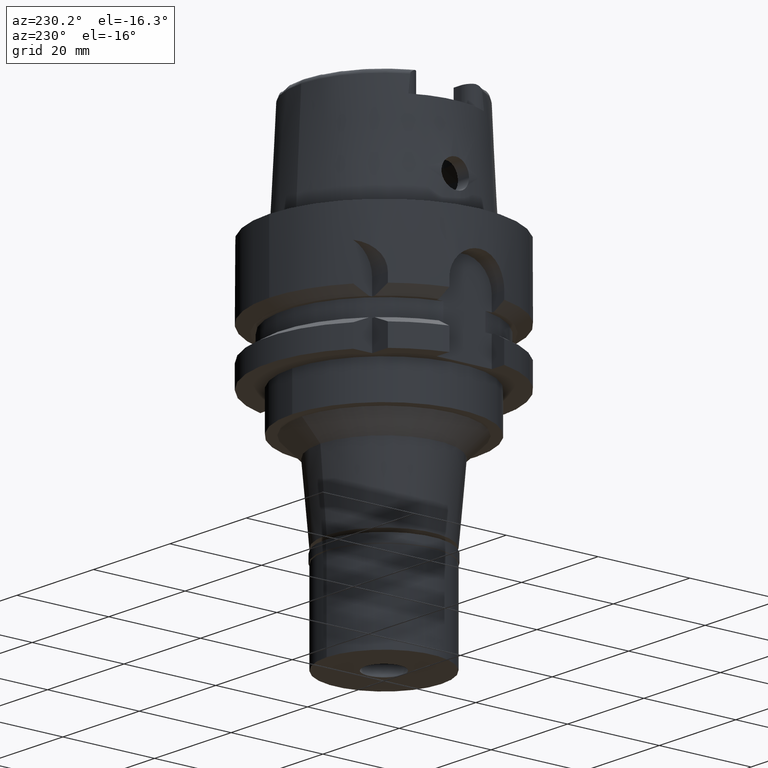
[diagram: clean part render]
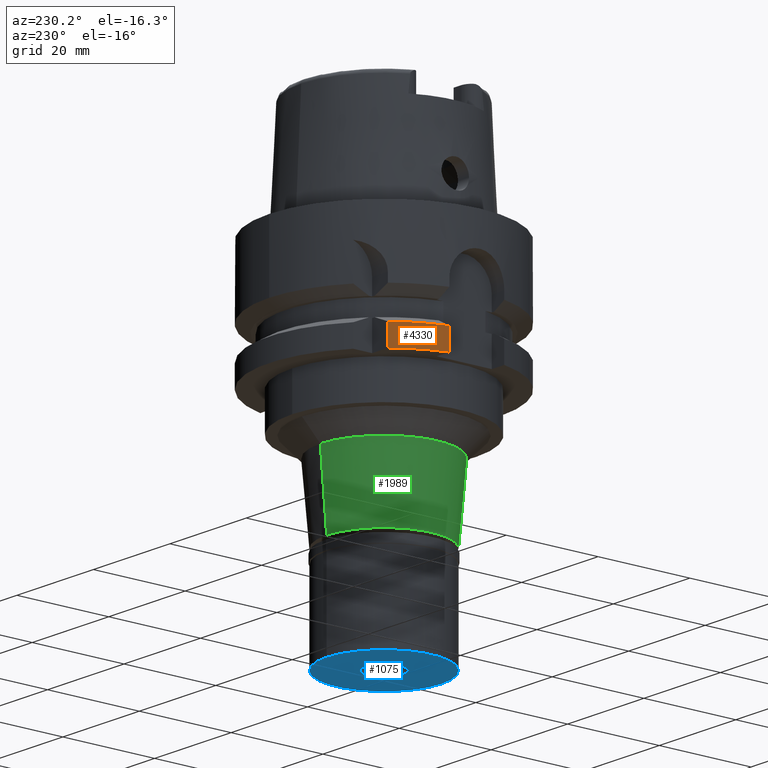
[diagram: same view with three faces highlighted in distinct colors, each labeled with its STEP entity id]
A machine part, auxiliary view with three faces highlighted in distinct colors.
Their STEP definitions:

[orange] entity #4330 — the highlighted cylindrical surface (partial cylindrical patch) has radius 25 mm, axis along (0, 0, 1).
#280 = ORIENTED_EDGE ( 'NONE', *, *, #4807, .T. ) ;
#435 = CARTESIAN_POINT ( 'NONE',  ( -24.26932223308000047, 5.999999862254999705, -21.37749775178999556 ) ) ;
#437 = VECTOR ( 'NONE', #4272, 1000.000000000000000 ) ;
#577 = ORIENTED_EDGE ( 'NONE', *, *, #4675, .F. ) ;
#921 = CARTESIAN_POINT ( 'NONE',  ( -24.26932219902000298, 6.000000000000000000, -26.00000000000000000 ) ) ;
#970 = DIRECTION ( 'NONE',  ( 0.0000000000000000000, 0.0000000000000000000, 1.000000000000000000 ) ) ;
#1013 = EDGE_LOOP ( 'NONE', ( #280, #2338, #1228, #577 ) ) ;
#1145 = AXIS2_PLACEMENT_3D ( 'NONE', #1890, #3893, #2701 ) ;
#1228 = ORIENTED_EDGE ( 'NONE', *, *, #3759, .T. ) ;
#1260 = CYLINDRICAL_SURFACE ( 'NONE', #2040, 25.00000000000000000 ) ;
#1325 = CIRCLE ( 'NONE', #1145, 24.99999999999999645 ) ;
#1655 = DIRECTION ( 'NONE',  ( 0.0000000000000000000, 0.0000000000000000000, -1.000000000000000000 ) ) ;
#1793 = LINE ( 'NONE', #435, #437 ) ;
#1890 = CARTESIAN_POINT ( 'NONE',  ( 0.0000000000000000000, 0.0000000000000000000, -26.00000000000000000 ) ) ;
#2040 = AXIS2_PLACEMENT_3D ( 'NONE', #2183, #2159, #3849 ) ;
#2159 = DIRECTION ( 'NONE',  ( 0.0000000000000000000, 0.0000000000000000000, 1.000000000000000000 ) ) ;
#2183 = CARTESIAN_POINT ( 'NONE',  ( 0.0000000000000000000, 0.0000000000000000000, -73.48999999999999488 ) ) ;
#2184 = VERTEX_POINT ( 'NONE', #5280 ) ;
#2192 = CARTESIAN_POINT ( 'NONE',  ( -19.61504524593285126, 15.50000000000025047, -26.00000000000000000 ) ) ;
#2338 = ORIENTED_EDGE ( 'NONE', *, *, #3897, .F. ) ;
#2459 = CARTESIAN_POINT ( 'NONE',  ( 0.0000000000000000000, 0.0000000000000000000, -21.37749907476000288 ) ) ;
#2674 = LINE ( 'NONE', #3947, #3984 ) ;
#2701 = DIRECTION ( 'NONE',  ( -0.7846018098373132021, 0.6200000000000100986, 0.0000000000000000000 ) ) ;
#3012 = CIRCLE ( 'NONE', #5045, 24.99999999999999645 ) ;
#3291 = VERTEX_POINT ( 'NONE', #4775 ) ;
#3604 = VERTEX_POINT ( 'NONE', #2192 ) ;
#3759 = EDGE_CURVE ( 'NONE', #2184, #3291, #3012, .T. ) ;
#3849 = DIRECTION ( 'NONE',  ( 0.0000000000000000000, 1.000000000000000000, 0.0000000000000000000 ) ) ;
#3893 = DIRECTION ( 'NONE',  ( 0.0000000000000000000, 0.0000000000000000000, 1.000000000000000000 ) ) ;
#3897 = EDGE_CURVE ( 'NONE', #2184, #4230, #1793, .T. ) ;
#3947 = CARTESIAN_POINT ( 'NONE',  ( -19.61504524593305021, 15.50000000000000000, -73.48999999999999488 ) ) ;
#3984 = VECTOR ( 'NONE', #970, 1000.000000000000000 ) ;
#4230 = VERTEX_POINT ( 'NONE', #921 ) ;
#4262 = FACE_OUTER_BOUND ( 'NONE', #1013, .T. ) ;
#4272 = DIRECTION ( 'NONE',  ( 7.367153286429996956E-09, 2.979894849161998821E-08, -0.9999999999999995559 ) ) ;
#4330 = ADVANCED_FACE ( 'NONE', ( #4262 ), #1260, .T. ) ;
#4675 = EDGE_CURVE ( 'NONE', #3604, #3291, #2674, .T. ) ;
#4775 = CARTESIAN_POINT ( 'NONE',  ( -19.61503421991999829, 15.50001395324999898, -21.37755013309999796 ) ) ;
#4807 = EDGE_CURVE ( 'NONE', #3604, #4230, #1325, .T. ) ;
#4963 = DIRECTION ( 'NONE',  ( -0.9707728879609262007, 0.2400000000000065414, 0.0000000000000000000 ) ) ;
#5045 = AXIS2_PLACEMENT_3D ( 'NONE', #2459, #1655, #4963 ) ;
#5280 = CARTESIAN_POINT ( 'NONE',  ( -24.26932219902000298, 6.000000000001000089, -21.37749907476000288 ) ) ;

[blue] entity #1075 — the highlighted planar face has unit normal (0, 0, -1).
#331 = PLANE ( 'NONE',  #2733 ) ;
#381 = EDGE_CURVE ( 'NONE', #742, #4865, #3169, .T. ) ;
#742 = VERTEX_POINT ( 'NONE', #4030 ) ;
#850 = CARTESIAN_POINT ( 'NONE',  ( 0.0000000000000000000, 0.0000000000000000000, -20.50000000000000000 ) ) ;
#964 = CIRCLE ( 'NONE', #3193, 12.50000000000000000 ) ;
#1075 = ADVANCED_FACE ( 'NONE', ( #2529, #5365 ), #331, .T. ) ;
#1240 = EDGE_CURVE ( 'NONE', #2342, #4231, #1927, .T. ) ;
#1302 = CARTESIAN_POINT ( 'NONE',  ( 0.0000000000000000000, 0.0000000000000000000, -20.50000000000000000 ) ) ;
#1859 = CIRCLE ( 'NONE', #4699, 4.050000000000999911 ) ;
#1861 = DIRECTION ( 'NONE',  ( 0.0000000000000000000, 0.0000000000000000000, -1.000000000000000000 ) ) ;
#1927 = CIRCLE ( 'NONE', #2117, 4.050000000000999911 ) ;
#1937 = DIRECTION ( 'NONE',  ( 0.0000000000000000000, 1.000000000000000000, 0.0000000000000000000 ) ) ;
#2003 = CARTESIAN_POINT ( 'NONE',  ( 0.0000000000000000000, 0.0000000000000000000, -20.50000000000000000 ) ) ;
#2117 = AXIS2_PLACEMENT_3D ( 'NONE', #1302, #3812, #3003 ) ;
#2199 = EDGE_LOOP ( 'NONE', ( #3689, #5328 ) ) ;
#2218 = CARTESIAN_POINT ( 'NONE',  ( 0.0000000000000000000, 0.0000000000000000000, -20.50000000000000000 ) ) ;
#2273 = CARTESIAN_POINT ( 'NONE',  ( 0.0000000000000000000, 0.0000000000000000000, -20.50000000000000000 ) ) ;
#2276 = CARTESIAN_POINT ( 'NONE',  ( 0.0000000000000000000, 12.50000000000000000, -20.50000000000000000 ) ) ;
#2342 = VERTEX_POINT ( 'NONE', #3365 ) ;
#2496 = DIRECTION ( 'NONE',  ( 0.0000000000000000000, 0.0000000000000000000, 1.000000000000000000 ) ) ;
#2529 = FACE_OUTER_BOUND ( 'NONE', #2199, .T. ) ;
#2551 = DIRECTION ( 'NONE',  ( 0.0000000000000000000, 1.000000000000000000, 0.0000000000000000000 ) ) ;
#2552 = EDGE_CURVE ( 'NONE', #4231, #2342, #1859, .T. ) ;
#2630 = DIRECTION ( 'NONE',  ( 0.0000000000000000000, 0.0000000000000000000, 1.000000000000000000 ) ) ;
#2643 = AXIS2_PLACEMENT_3D ( 'NONE', #850, #2496, #3745 ) ;
#2733 = AXIS2_PLACEMENT_3D ( 'NONE', #2003, #3752, #3309 ) ;
#2810 = EDGE_CURVE ( 'NONE', #4865, #742, #964, .T. ) ;
#2990 = CARTESIAN_POINT ( 'NONE',  ( 0.0000000000000000000, 4.050000000000999911, -20.50000000000000000 ) ) ;
#3003 = DIRECTION ( 'NONE',  ( 0.0000000000000000000, -1.000000000000000000, 0.0000000000000000000 ) ) ;
#3169 = CIRCLE ( 'NONE', #2643, 12.50000000000000000 ) ;
#3193 = AXIS2_PLACEMENT_3D ( 'NONE', #2218, #2630, #2551 ) ;
#3309 = DIRECTION ( 'NONE',  ( 0.0000000000000000000, -1.000000000000000000, 0.0000000000000000000 ) ) ;
#3365 = CARTESIAN_POINT ( 'NONE',  ( 0.0000000000000000000, -4.050000000000999911, -20.50000000000000000 ) ) ;
#3514 = ORIENTED_EDGE ( 'NONE', *, *, #1240, .F. ) ;
#3689 = ORIENTED_EDGE ( 'NONE', *, *, #2810, .F. ) ;
#3745 = DIRECTION ( 'NONE',  ( 0.0000000000000000000, -1.000000000000000000, 0.0000000000000000000 ) ) ;
#3752 = DIRECTION ( 'NONE',  ( 0.0000000000000000000, 0.0000000000000000000, -1.000000000000000000 ) ) ;
#3812 = DIRECTION ( 'NONE',  ( 0.0000000000000000000, 0.0000000000000000000, -1.000000000000000000 ) ) ;
#4030 = CARTESIAN_POINT ( 'NONE',  ( 0.0000000000000000000, -12.50000000000000000, -20.50000000000000000 ) ) ;
#4061 = ORIENTED_EDGE ( 'NONE', *, *, #2552, .F. ) ;
#4231 = VERTEX_POINT ( 'NONE', #2990 ) ;
#4699 = AXIS2_PLACEMENT_3D ( 'NONE', #2273, #1861, #1937 ) ;
#4865 = VERTEX_POINT ( 'NONE', #2276 ) ;
#5328 = ORIENTED_EDGE ( 'NONE', *, *, #381, .F. ) ;
#5365 = FACE_BOUND ( 'NONE', #5444, .T. ) ;
#5444 = EDGE_LOOP ( 'NONE', ( #4061, #3514 ) ) ;

[green] entity #1989 — the highlighted conical surface has half-angle 5 deg.
#9 = CARTESIAN_POINT ( 'NONE',  ( 0.0000000000000000000, 0.0000000000000000000, -53.69999999999999574 ) ) ;
#57 = VERTEX_POINT ( 'NONE', #812 ) ;
#154 = EDGE_CURVE ( 'NONE', #57, #1789, #3732, .T. ) ;
#516 = CONICAL_SURFACE ( 'NONE', #4244, 13.18678600868000039, 0.08726646259969973729 ) ;
#603 = DIRECTION ( 'NONE',  ( 0.0000000000000000000, 0.0000000000000000000, -1.000000000000000000 ) ) ;
#637 = DIRECTION ( 'NONE',  ( 0.0000000000000000000, -1.000000000000000000, 0.0000000000000000000 ) ) ;
#781 = DIRECTION ( 'NONE',  ( 0.0000000000000000000, 0.0000000000000000000, 1.000000000000000000 ) ) ;
#812 = CARTESIAN_POINT ( 'NONE',  ( 0.0000000000000000000, -13.87357201735999901, -38.00000000000000000 ) ) ;
#813 = DIRECTION ( 'NONE',  ( 0.0000000000000000000, 1.000000000000000000, 0.0000000000000000000 ) ) ;
#851 = CARTESIAN_POINT ( 'NONE',  ( 0.0000000000000000000, -12.50000000000000000, -53.69999999999999574 ) ) ;
#1312 = LINE ( 'NONE', #4701, #4871 ) ;
#1373 = CARTESIAN_POINT ( 'NONE',  ( 0.0000000000000000000, 12.50000000000000000, -53.69999999999999574 ) ) ;
#1756 = CIRCLE ( 'NONE', #3539, 13.87357201735999901 ) ;
#1789 = VERTEX_POINT ( 'NONE', #851 ) ;
#1805 = CARTESIAN_POINT ( 'NONE',  ( 0.0000000000000000000, 13.87357201735999901, -38.00000000000000000 ) ) ;
#1989 = ADVANCED_FACE ( 'NONE', ( #4983 ), #516, .T. ) ;
#2053 = EDGE_CURVE ( 'NONE', #3904, #1789, #5048, .T. ) ;
#2074 = CARTESIAN_POINT ( 'NONE',  ( 0.0000000000000000000, 0.0000000000000000000, -45.85000000000000142 ) ) ;
#2226 = ORIENTED_EDGE ( 'NONE', *, *, #2053, .T. ) ;
#2286 = ORIENTED_EDGE ( 'NONE', *, *, #154, .F. ) ;
#2363 = ORIENTED_EDGE ( 'NONE', *, *, #2719, .T. ) ;
#2480 = DIRECTION ( 'NONE',  ( 0.0000000000000000000, 0.08715574274774329222, -0.9961946980917381067 ) ) ;
#2719 = EDGE_CURVE ( 'NONE', #4896, #3904, #1312, .T. ) ;
#3166 = CARTESIAN_POINT ( 'NONE',  ( 0.0000000000000000000, 0.0000000000000000000, -38.00000000000000000 ) ) ;
#3439 = EDGE_CURVE ( 'NONE', #57, #4896, #1756, .T. ) ;
#3539 = AXIS2_PLACEMENT_3D ( 'NONE', #3166, #603, #637 ) ;
#3699 = VECTOR ( 'NONE', #2480, 1000.000000000000114 ) ;
#3732 = LINE ( 'NONE', #4582, #3699 ) ;
#3785 = DIRECTION ( 'NONE',  ( 0.0000000000000000000, 1.000000000000000000, 0.0000000000000000000 ) ) ;
#3904 = VERTEX_POINT ( 'NONE', #1373 ) ;
#4244 = AXIS2_PLACEMENT_3D ( 'NONE', #2074, #5007, #813 ) ;
#4582 = CARTESIAN_POINT ( 'NONE',  ( 0.0000000000000000000, -13.87357201735999901, -38.00000000000000000 ) ) ;
#4701 = CARTESIAN_POINT ( 'NONE',  ( 0.0000000000000000000, 13.87357201735999901, -38.00000000000000000 ) ) ;
#4783 = AXIS2_PLACEMENT_3D ( 'NONE', #9, #781, #3785 ) ;
#4869 = EDGE_LOOP ( 'NONE', ( #2226, #2286, #5155, #2363 ) ) ;
#4871 = VECTOR ( 'NONE', #5176, 1000.000000000000114 ) ;
#4896 = VERTEX_POINT ( 'NONE', #1805 ) ;
#4983 = FACE_OUTER_BOUND ( 'NONE', #4869, .T. ) ;
#5007 = DIRECTION ( 'NONE',  ( 0.0000000000000000000, 0.0000000000000000000, 1.000000000000000000 ) ) ;
#5048 = CIRCLE ( 'NONE', #4783, 12.50000000000000000 ) ;
#5155 = ORIENTED_EDGE ( 'NONE', *, *, #3439, .T. ) ;
#5176 = DIRECTION ( 'NONE',  ( 0.0000000000000000000, -0.08715574274774329222, -0.9961946980917381067 ) ) ;